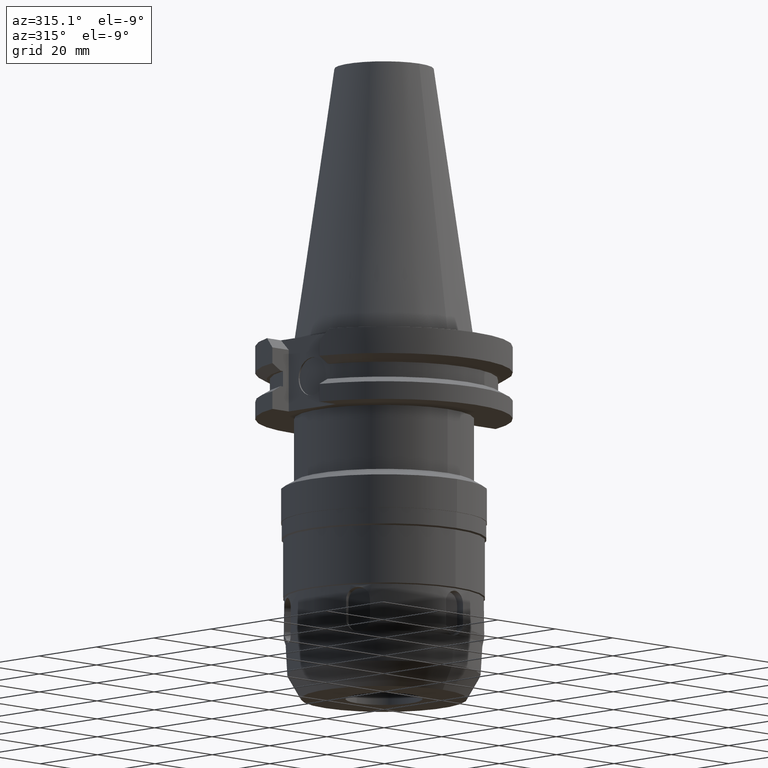
[diagram: clean part render]
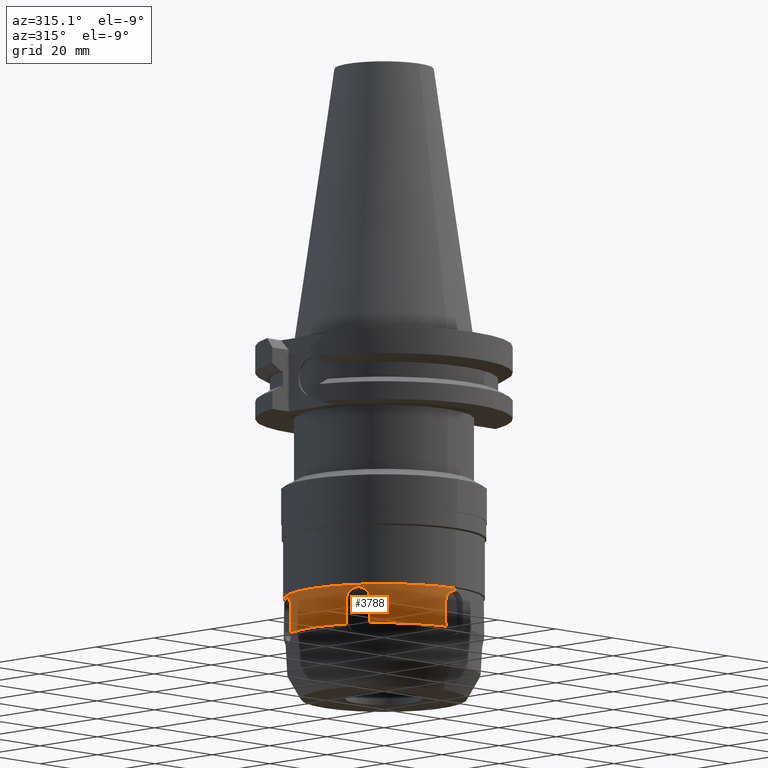
[diagram: same view with one face highlighted and labeled with its STEP entity id]
A machine part, auxiliary view. The second image highlights one B-rep face of the part: STEP entity #3788.
In plain terms, the highlighted cylindrical surface (partial cylindrical patch) has radius 24.75 mm, axis along (0, 0, -1).
Its self-contained STEP definition (entity closure, byte-faithful):
#1066=CARTESIAN_POINT('',(0.E0,0.E0,-6.405E1));
#1067=DIRECTION('',(0.E0,0.E0,-1.E0));
#1068=DIRECTION('',(0.E0,-1.E0,0.E0));
#1069=AXIS2_PLACEMENT_3D('',#1066,#1067,#1068);
#1074=DIRECTION('',(6.355244437052E-8,3.384466797314E-7,9.999999999999E-1));
#1075=VECTOR('',#1074,5.000000000252E0);
#1076=CARTESIAN_POINT('',(-2.277608724652E1,9.685676612034E0,
-7.270000000025E1));
#1077=LINE('',#1076,#1075);
#1081=CARTESIAN_POINT('',(-2.277608692876E1,9.685678304267E0,-6.77E1));
#1082=CARTESIAN_POINT('',(-2.277608692876E1,9.685678304267E0,
-6.743373359613E1));
#1083=CARTESIAN_POINT('',(-2.274938091520E1,9.748848198042E0,
-6.692064252011E1));
#1084=CARTESIAN_POINT('',(-2.262821740910E1,1.002886071920E1,
-6.618334999749E1));
#1085=CARTESIAN_POINT('',(-2.242865545740E1,1.047001116240E1,
-6.555628551350E1));
#1086=CARTESIAN_POINT('',(-2.215683988570E1,1.103620020292E1,
-6.507342683010E1));
#1087=CARTESIAN_POINT('',(-2.181772037957E1,1.169371271333E1,
-6.476847720836E1));
#1088=CARTESIAN_POINT('',(-2.156769617757E1,1.214365441823E1,
-6.470000000001E1));
#1089=CARTESIAN_POINT('',(-2.143412874366E1,1.2375E1,-6.470000000001E1));
#1094=CARTESIAN_POINT('',(-2.143412874366E1,1.2375E1,-6.470000000001E1));
#1095=CARTESIAN_POINT('',(-2.130111583493E1,1.260538511599E1,
-6.470000000001E1));
#1096=CARTESIAN_POINT('',(-2.103738153989E1,1.304543143808E1,
-6.476795605533E1));
#1097=CARTESIAN_POINT('',(-2.063848519112E1,1.366660445639E1,
-6.507098719411E1));
#1098=CARTESIAN_POINT('',(-2.028360928768E1,1.418596098217E1,
-6.555278632414E1));
#1099=CARTESIAN_POINT('',(-2.000057788748E1,1.458051961682E1,
-6.617959459348E1));
#1100=CARTESIAN_POINT('',(-1.981771434733E1,1.482675782727E1,
-6.691824521145E1));
#1101=CARTESIAN_POINT('',(-1.977608692876E1,1.488183072697E1,
-6.743281111460E1));
#1102=CARTESIAN_POINT('',(-1.977608692876E1,1.488183072697E1,-6.77E1));
#1107=DIRECTION('',(5.733261232660E-6,-2.907946254791E-6,-9.999999999793E-1));
#1108=VECTOR('',#1107,5.000000011343E0);
#1109=CARTESIAN_POINT('',(-1.977608692876E1,1.488183072697E1,-6.77E1));
#1110=LINE('',#1109,#1108);
#1114=CARTESIAN_POINT('',(-1.977605826245E1,1.488181618724E1,
-7.270000001124E1));
#1115=CARTESIAN_POINT('',(-1.977605826245E1,1.488181618724E1,
-7.282583989095E1));
#1116=CARTESIAN_POINT('',(-1.978560937991E1,1.486921420482E1,
-7.307515261116E1));
#1117=CARTESIAN_POINT('',(-1.982809887042E1,1.481254782418E1,
-7.344552653424E1));
#1118=CARTESIAN_POINT('',(-1.987429749161E1,1.475049062275E1,
-7.368303412588E1));
#1119=CARTESIAN_POINT('',(-1.990187687141E1,1.471318518332E1,
-7.379999821526E1));
#1124=CARTESIAN_POINT('',(-2.791106676751E0,2.459215007470E1,
-7.379986379648E1));
#1125=CARTESIAN_POINT('',(-2.837186926487E0,2.458692026871E1,
-7.368289304646E1));
#1126=CARTESIAN_POINT('',(-2.913976022435E0,2.457790221688E1,
-7.344559241540E1));
#1127=CARTESIAN_POINT('',(-2.984316465564E0,2.456943665228E1,
-7.307513385019E1));
#1128=CARTESIAN_POINT('',(-3.000001633886E0,2.456750845698E1,
-7.282583991992E1));
#1129=CARTESIAN_POINT('',(-3.000001633886E0,2.456750845698E1,
-7.270000000025E1));
#1134=DIRECTION('',(3.267771724159E-7,1.148522329628E-7,9.999999999999E-1));
#1135=VECTOR('',#1134,5.000000000254E0);
#1136=CARTESIAN_POINT('',(-3.000001633886E0,2.456750845698E1,
-7.270000000025E1));
#1137=LINE('',#1136,#1135);
#1141=CARTESIAN_POINT('',(-3.E0,2.456750903124E1,-6.77E1));
#1142=CARTESIAN_POINT('',(-3.E0,2.456750903124E1,-6.743360671043E1));
#1143=CARTESIAN_POINT('',(-2.931883565201E0,2.457597349935E1,
-6.692034259736E1));
#1144=CARTESIAN_POINT('',(-2.628631792599E0,2.461106522624E1,
-6.618299068779E1));
#1145=CARTESIAN_POINT('',(-2.146946861111E0,2.465879998737E1,
-6.555619078064E1));
#1146=CARTESIAN_POINT('',(-1.520477357079E0,2.470650250760E1,
-6.507327993839E1));
#1147=CARTESIAN_POINT('',(-7.822035275136E-1,2.474153986974E1,
-6.476862136018E1));
#1148=CARTESIAN_POINT('',(-2.673095226598E-1,2.475E1,-6.47E1));
#1149=CARTESIAN_POINT('',(8.134563955330E-14,2.475E1,-6.47E1));
#1154=DIRECTION('',(-5.955857755030E-14,0.E0,-1.E0));
#1155=VECTOR('',#1154,6.5E-1);
#1156=CARTESIAN_POINT('',(0.E0,-2.475E1,-6.405E1));
#1157=LINE('',#1156,#1155);
#1161=CARTESIAN_POINT('',(-3.871307540770E-14,-2.475E1,-6.47E1));
#1162=CARTESIAN_POINT('',(-2.662625650534E-1,-2.475E1,-6.47E1));
#1163=CARTESIAN_POINT('',(-7.795289447378E-1,-2.474160655271E1,
-6.476808591502E1));
#1164=CARTESIAN_POINT('',(-1.516759053787E0,-2.470672825345E1,
-6.507123542419E1));
#1165=CARTESIAN_POINT('',(-2.143583222380E0,-2.465910010021E1,
-6.555282870886E1));
#1166=CARTESIAN_POINT('',(-2.626584603095E0,-2.461129237886E1,
-6.617926545819E1));
#1167=CARTESIAN_POINT('',(-2.931353583028E0,-2.457604004879E1,
-6.691768510713E1));
#1168=CARTESIAN_POINT('',(-3.E0,-2.456750903124E1,-6.743256676158E1));
#1169=CARTESIAN_POINT('',(-3.E0,-2.456750903124E1,-6.77E1));
#1174=DIRECTION('',(-3.500562035847E-7,6.419749058395E-6,-9.999999999793E-1));
#1175=VECTOR('',#1174,5.000000011345E0);
#1176=CARTESIAN_POINT('',(-3.E0,-2.456750903124E1,-6.77E1));
#1177=LINE('',#1176,#1175);
#1181=CARTESIAN_POINT('',(-3.000001750281E0,-2.456747693249E1,
-7.270000001124E1));
#1182=CARTESIAN_POINT('',(-3.000001750281E0,-2.456747693249E1,
-7.282583989098E1));
#1183=CARTESIAN_POINT('',(-2.984312583225E0,-2.456944745146E1,
-7.307515260947E1));
#1184=CARTESIAN_POINT('',(-2.913993243790E0,-2.457791124520E1,
-7.344552652762E1));
#1185=CARTESIAN_POINT('',(-2.837150839418E0,-2.458689182488E1,
-7.368303410830E1));
#1186=CARTESIAN_POINT('',(-2.791053688532E0,-2.459212354889E1,
-7.379999820750E1));
#1191=CARTESIAN_POINT('',(-1.990187334820E1,-1.471324433659E1,
-7.379986380465E1));
#1192=CARTESIAN_POINT('',(-1.987430408020E1,-1.475053609796E1,
-7.368289306536E1));
#1193=CARTESIAN_POINT('',(-1.982809966031E1,-1.481252839879E1,
-7.344559242297E1));
#1194=CARTESIAN_POINT('',(-1.978559808747E1,-1.486921216584E1,
-7.307513385208E1));
#1195=CARTESIAN_POINT('',(-1.977608562212E1,-1.488183184828E1,
-7.282583991992E1));
#1196=CARTESIAN_POINT('',(-1.977608562212E1,-1.488183184828E1,
-7.270000000025E1));
#1201=DIRECTION('',(-2.613272243802E-7,2.242613927337E-7,9.999999999999E-1));
#1202=VECTOR('',#1201,5.000000000252E0);
#1203=CARTESIAN_POINT('',(-1.977608562212E1,-1.488183184828E1,
-7.270000000025E1));
#1204=LINE('',#1203,#1202);
#1208=CARTESIAN_POINT('',(-1.977608692876E1,-1.488183072697E1,-6.77E1));
#1209=CARTESIAN_POINT('',(-1.977608692876E1,-1.488183072697E1,
-6.743383856007E1));
#1210=CARTESIAN_POINT('',(-1.981739600816E1,-1.482717785844E1,
-6.692087141772E1));
#1211=CARTESIAN_POINT('',(-1.999937087573E1,-1.458216084460E1,
-6.618328096259E1));
#1212=CARTESIAN_POINT('',(-2.028168686310E1,-1.418869630797E1,
-6.555611597851E1));
#1213=CARTESIAN_POINT('',(-2.063644578026E1,-1.366968885132E1,
-6.507301528072E1));
#1214=CARTESIAN_POINT('',(-2.103600346908E1,-1.304768696149E1,
-6.476848331891E1));
#1215=CARTESIAN_POINT('',(-2.130059878901E1,-1.260628066581E1,
-6.469999999995E1));
#1216=CARTESIAN_POINT('',(-2.143412874367E1,-1.2375E1,-6.469999999995E1));
#1221=CARTESIAN_POINT('',(-2.143412874367E1,-1.2375E1,-6.469999999995E1));
#1222=CARTESIAN_POINT('',(-2.156719562928E1,-1.214452139332E1,
-6.469999999995E1));
#1223=CARTESIAN_POINT('',(-2.181649894808E1,-1.169595527822E1,
-6.476796797122E1));
#1224=CARTESIAN_POINT('',(-2.215524936760E1,-1.103938747613E1,
-6.507146737600E1));
#1225=CARTESIAN_POINT('',(-2.242732173950E1,-1.047288546112E1,
-6.555312087055E1));
#1226=CARTESIAN_POINT('',(-2.262745297956E1,-1.003060506936E1,
-6.617989331974E1));
#1227=CARTESIAN_POINT('',(-2.274919384795E1,-9.749292429124E0,
-6.691822302316E1));
#1228=CARTESIAN_POINT('',(-2.277608692876E1,-9.685678304267E0,
-6.743279026379E1));
#1229=CARTESIAN_POINT('',(-2.277608692876E1,-9.685678304267E0,-6.77E1));
#1234=DIRECTION('',(5.384986115194E-6,3.511176731969E-6,-9.999999999793E-1));
#1235=VECTOR('',#1234,5.000000011343E0);
#1236=CARTESIAN_POINT('',(-2.277608692876E1,-9.685678304267E0,-6.77E1));
#1237=LINE('',#1236,#1235);
#1241=CARTESIAN_POINT('',(-2.277606000383E1,-9.685660748383E0,
-7.270000001124E1));
#1242=CARTESIAN_POINT('',(-2.277606000383E1,-9.685660748383E0,
-7.282583989095E1));
#1243=CARTESIAN_POINT('',(-2.276992192564E1,-9.700233249953E0,
-7.307515261116E1));
#1244=CARTESIAN_POINT('',(-2.274209214572E1,-9.765363418436E0,
-7.344552653422E1));
#1245=CARTESIAN_POINT('',(-2.271144834339E1,-9.836401198746E0,
-7.368303412594E1));
#1246=CARTESIAN_POINT('',(-2.269293057503E1,-9.878938361988E0,
-7.379999821532E1));
#1251=CARTESIAN_POINT('',(-2.269298004161E1,9.878905734290E0,
-7.379986380505E1));
#1252=CARTESIAN_POINT('',(-2.271149102033E1,9.836384167114E0,
-7.368289306577E1));
#1253=CARTESIAN_POINT('',(-2.274207571781E1,9.765373815152E0,
-7.344559242277E1));
#1254=CARTESIAN_POINT('',(-2.276991451360E1,9.700224489907E0,
-7.307513385213E1));
#1255=CARTESIAN_POINT('',(-2.277608724652E1,9.685676612034E0,
-7.282583991992E1));
#1256=CARTESIAN_POINT('',(-2.277608724652E1,9.685676612034E0,
-7.270000000025E1));
#1275=CARTESIAN_POINT('',(-1.990187687141E1,1.471318518332E1,
-7.379999821526E1));
#1300=CARTESIAN_POINT('',(-2.791106676751E0,2.459215007470E1,
-7.379986379648E1));
#1305=CARTESIAN_POINT('',(0.E0,0.E0,-7.38E1));
#1306=DIRECTION('',(0.E0,0.E0,1.E0));
#1307=DIRECTION('',(-1.127694840448E-1,9.936211770430E-1,0.E0));
#1308=AXIS2_PLACEMENT_3D('',#1305,#1306,#1307);
#1399=CARTESIAN_POINT('',(0.E0,0.E0,-7.38E1));
#1400=DIRECTION('',(0.E0,0.E0,1.E0));
#1401=DIRECTION('',(-9.168859240507E-1,3.991493483368E-1,0.E0));
#1402=AXIS2_PLACEMENT_3D('',#1399,#1400,#1401);
#1446=CARTESIAN_POINT('',(-1.990187334820E1,-1.471324433659E1,
-7.379986380465E1));
#1451=CARTESIAN_POINT('',(0.E0,0.E0,-7.38E1));
#1452=DIRECTION('',(0.E0,0.E0,1.E0));
#1453=DIRECTION('',(-8.041164375890E-1,-5.944718284319E-1,0.E0));
#1454=AXIS2_PLACEMENT_3D('',#1451,#1452,#1453);
#1633=DIRECTION('',(7.441848572605E-14,1.093142670400E-14,-1.E0));
#1634=VECTOR('',#1633,6.5E-1);
#1635=CARTESIAN_POINT('',(3.297362383137E-14,2.475E1,-6.405E1));
#1636=LINE('',#1635,#1634);
#2613=VERTEX_POINT('',#1275);
#2614=VERTEX_POINT('',#1114);
#2621=CARTESIAN_POINT('',(-2.277608724652E1,9.685676612034E0,
-7.270000000025E1));
#2622=VERTEX_POINT('',#2621);
#2623=VERTEX_POINT('',#1251);
#2639=VERTEX_POINT('',#1446);
#2640=CARTESIAN_POINT('',(-2.791044651465E0,-2.459212414074E1,-7.38E1));
#2641=VERTEX_POINT('',#2640);
#2642=VERTEX_POINT('',#1300);
#2643=CARTESIAN_POINT('',(-2.269292658652E1,-9.878946448818E0,-7.38E1));
#2644=VERTEX_POINT('',#2643);
#2656=VERTEX_POINT('',#1181);
#2665=CARTESIAN_POINT('',(-2.277608692876E1,9.685678304267E0,-6.77E1));
#2666=VERTEX_POINT('',#2665);
#2667=VERTEX_POINT('',#1094);
#2668=VERTEX_POINT('',#1102);
#2669=VERTEX_POINT('',#1129);
#2670=CARTESIAN_POINT('',(-3.E0,2.456750903124E1,-6.77E1));
#2671=VERTEX_POINT('',#2670);
#2672=VERTEX_POINT('',#1149);
#2673=CARTESIAN_POINT('',(3.297362383137E-14,2.475E1,-6.405E1));
#2674=VERTEX_POINT('',#2673);
#2675=CARTESIAN_POINT('',(0.E0,-2.475E1,-6.405E1));
#2676=VERTEX_POINT('',#2675);
#2677=CARTESIAN_POINT('',(-3.871307540770E-14,-2.475E1,-6.47E1));
#2678=VERTEX_POINT('',#2677);
#2679=VERTEX_POINT('',#1169);
#2680=VERTEX_POINT('',#1196);
#2681=CARTESIAN_POINT('',(-1.977608692876E1,-1.488183072697E1,-6.77E1));
#2682=VERTEX_POINT('',#2681);
#2683=VERTEX_POINT('',#1221);
#2684=VERTEX_POINT('',#1229);
#2685=CARTESIAN_POINT('',(-2.277606000383E1,-9.685660748383E0,
-7.270000001124E1));
#2686=VERTEX_POINT('',#2685);
#3734=CARTESIAN_POINT('',(0.E0,2.156694861808E-14,7.61075E1));
#3735=DIRECTION('',(0.E0,0.E0,-1.E0));
#3736=DIRECTION('',(0.E0,-1.E0,0.E0));
#3737=AXIS2_PLACEMENT_3D('',#3734,#3735,#3736);
#3738=CYLINDRICAL_SURFACE('',#3737,2.475E1);
#3740=ORIENTED_EDGE('',*,*,#3739,.T.);
#3742=ORIENTED_EDGE('',*,*,#3741,.T.);
#3744=ORIENTED_EDGE('',*,*,#3743,.T.);
#3746=ORIENTED_EDGE('',*,*,#3745,.T.);
#3748=ORIENTED_EDGE('',*,*,#3747,.T.);
#3750=ORIENTED_EDGE('',*,*,#3749,.F.);
#3752=ORIENTED_EDGE('',*,*,#3751,.T.);
#3754=ORIENTED_EDGE('',*,*,#3753,.T.);
#3756=ORIENTED_EDGE('',*,*,#3755,.T.);
#3758=ORIENTED_EDGE('',*,*,#3757,.F.);
#3759=ORIENTED_EDGE('',*,*,#3729,.F.);
#3761=ORIENTED_EDGE('',*,*,#3760,.T.);
#3763=ORIENTED_EDGE('',*,*,#3762,.T.);
#3765=ORIENTED_EDGE('',*,*,#3764,.T.);
#3767=ORIENTED_EDGE('',*,*,#3766,.T.);
#3769=ORIENTED_EDGE('',*,*,#3768,.F.);
#3771=ORIENTED_EDGE('',*,*,#3770,.T.);
#3773=ORIENTED_EDGE('',*,*,#3772,.T.);
#3775=ORIENTED_EDGE('',*,*,#3774,.T.);
#3777=ORIENTED_EDGE('',*,*,#3776,.T.);
#3779=ORIENTED_EDGE('',*,*,#3778,.T.);
#3781=ORIENTED_EDGE('',*,*,#3780,.T.);
#3783=ORIENTED_EDGE('',*,*,#3782,.F.);
#3785=ORIENTED_EDGE('',*,*,#3784,.T.);
#3786=EDGE_LOOP('',(#3740,#3742,#3744,#3746,#3748,#3750,#3752,#3754,#3756,#3758,
#3759,#3761,#3763,#3765,#3767,#3769,#3771,#3773,#3775,#3777,#3779,#3781,#3783,
#3785));
#3787=FACE_OUTER_BOUND('',#3786,.F.);
#1070=CIRCLE('',#1069,2.475E1);
#1090=B_SPLINE_CURVE_WITH_KNOTS('',3,(#1081,#1082,#1083,#1084,#1085,#1086,#1087,
#1088,#1089),.UNSPECIFIED.,.F.,.F.,(4,1,1,1,1,1,4),(0.E0,1.666666666667E-1,
3.333333333333E-1,5.E-1,6.666666666667E-1,8.333333333333E-1,1.E0),
.UNSPECIFIED.);
#1103=B_SPLINE_CURVE_WITH_KNOTS('',3,(#1094,#1095,#1096,#1097,#1098,#1099,#1100,
#1101,#1102),.UNSPECIFIED.,.F.,.F.,(4,1,1,1,1,1,4),(0.E0,1.666666666667E-1,
3.333333333333E-1,5.E-1,6.666666666667E-1,8.333333333333E-1,1.E0),
.UNSPECIFIED.);
#1120=B_SPLINE_CURVE_WITH_KNOTS('',3,(#1114,#1115,#1116,#1117,#1118,#1119),
.UNSPECIFIED.,.F.,.F.,(4,1,1,4),(0.E0,3.333333333333E-1,6.666666666667E-1,1.E0),
.UNSPECIFIED.);
#1130=B_SPLINE_CURVE_WITH_KNOTS('',3,(#1124,#1125,#1126,#1127,#1128,#1129),
.UNSPECIFIED.,.F.,.F.,(4,1,1,4),(0.E0,3.333333333333E-1,6.666666666667E-1,1.E0),
.UNSPECIFIED.);
#1150=B_SPLINE_CURVE_WITH_KNOTS('',3,(#1141,#1142,#1143,#1144,#1145,#1146,#1147,
#1148,#1149),.UNSPECIFIED.,.F.,.F.,(4,1,1,1,1,1,4),(0.E0,1.666666666667E-1,
3.333333333333E-1,5.E-1,6.666666666667E-1,8.333333333333E-1,1.E0),
.UNSPECIFIED.);
#1170=B_SPLINE_CURVE_WITH_KNOTS('',3,(#1161,#1162,#1163,#1164,#1165,#1166,#1167,
#1168,#1169),.UNSPECIFIED.,.F.,.F.,(4,1,1,1,1,1,4),(0.E0,1.666666666667E-1,
3.333333333333E-1,5.E-1,6.666666666667E-1,8.333333333333E-1,1.E0),
.UNSPECIFIED.);
#1187=B_SPLINE_CURVE_WITH_KNOTS('',3,(#1181,#1182,#1183,#1184,#1185,#1186),
.UNSPECIFIED.,.F.,.F.,(4,1,1,4),(0.E0,3.333333333333E-1,6.666666666667E-1,1.E0),
.UNSPECIFIED.);
#1197=B_SPLINE_CURVE_WITH_KNOTS('',3,(#1191,#1192,#1193,#1194,#1195,#1196),
.UNSPECIFIED.,.F.,.F.,(4,1,1,4),(0.E0,3.333333333333E-1,6.666666666667E-1,1.E0),
.UNSPECIFIED.);
#1217=B_SPLINE_CURVE_WITH_KNOTS('',3,(#1208,#1209,#1210,#1211,#1212,#1213,#1214,
#1215,#1216),.UNSPECIFIED.,.F.,.F.,(4,1,1,1,1,1,4),(0.E0,1.666666666667E-1,
3.333333333333E-1,5.E-1,6.666666666667E-1,8.333333333333E-1,1.E0),
.UNSPECIFIED.);
#1230=B_SPLINE_CURVE_WITH_KNOTS('',3,(#1221,#1222,#1223,#1224,#1225,#1226,#1227,
#1228,#1229),.UNSPECIFIED.,.F.,.F.,(4,1,1,1,1,1,4),(0.E0,1.666666666667E-1,
3.333333333333E-1,5.E-1,6.666666666667E-1,8.333333333333E-1,1.E0),
.UNSPECIFIED.);
#1247=B_SPLINE_CURVE_WITH_KNOTS('',3,(#1241,#1242,#1243,#1244,#1245,#1246),
.UNSPECIFIED.,.F.,.F.,(4,1,1,4),(0.E0,3.333333333333E-1,6.666666666667E-1,1.E0),
.UNSPECIFIED.);
#1257=B_SPLINE_CURVE_WITH_KNOTS('',3,(#1251,#1252,#1253,#1254,#1255,#1256),
.UNSPECIFIED.,.F.,.F.,(4,1,1,4),(0.E0,3.333333333333E-1,6.666666666667E-1,1.E0),
.UNSPECIFIED.);
#1309=CIRCLE('',#1308,2.475E1);
#1403=CIRCLE('',#1402,2.475E1);
#1455=CIRCLE('',#1454,2.475E1);
#3729=EDGE_CURVE('',#2676,#2674,#1070,.T.);
#3739=EDGE_CURVE('',#2622,#2666,#1077,.T.);
#3741=EDGE_CURVE('',#2666,#2667,#1090,.T.);
#3743=EDGE_CURVE('',#2667,#2668,#1103,.T.);
#3745=EDGE_CURVE('',#2668,#2614,#1110,.T.);
#3747=EDGE_CURVE('',#2614,#2613,#1120,.T.);
#3749=EDGE_CURVE('',#2642,#2613,#1309,.T.);
#3751=EDGE_CURVE('',#2642,#2669,#1130,.T.);
#3753=EDGE_CURVE('',#2669,#2671,#1137,.T.);
#3755=EDGE_CURVE('',#2671,#2672,#1150,.T.);
#3757=EDGE_CURVE('',#2674,#2672,#1636,.T.);
#3760=EDGE_CURVE('',#2676,#2678,#1157,.T.);
#3762=EDGE_CURVE('',#2678,#2679,#1170,.T.);
#3764=EDGE_CURVE('',#2679,#2656,#1177,.T.);
#3766=EDGE_CURVE('',#2656,#2641,#1187,.T.);
#3768=EDGE_CURVE('',#2639,#2641,#1455,.T.);
#3770=EDGE_CURVE('',#2639,#2680,#1197,.T.);
#3772=EDGE_CURVE('',#2680,#2682,#1204,.T.);
#3774=EDGE_CURVE('',#2682,#2683,#1217,.T.);
#3776=EDGE_CURVE('',#2683,#2684,#1230,.T.);
#3778=EDGE_CURVE('',#2684,#2686,#1237,.T.);
#3780=EDGE_CURVE('',#2686,#2644,#1247,.T.);
#3782=EDGE_CURVE('',#2623,#2644,#1403,.T.);
#3784=EDGE_CURVE('',#2623,#2622,#1257,.T.);
#3788=ADVANCED_FACE('',(#3787),#3738,.T.);